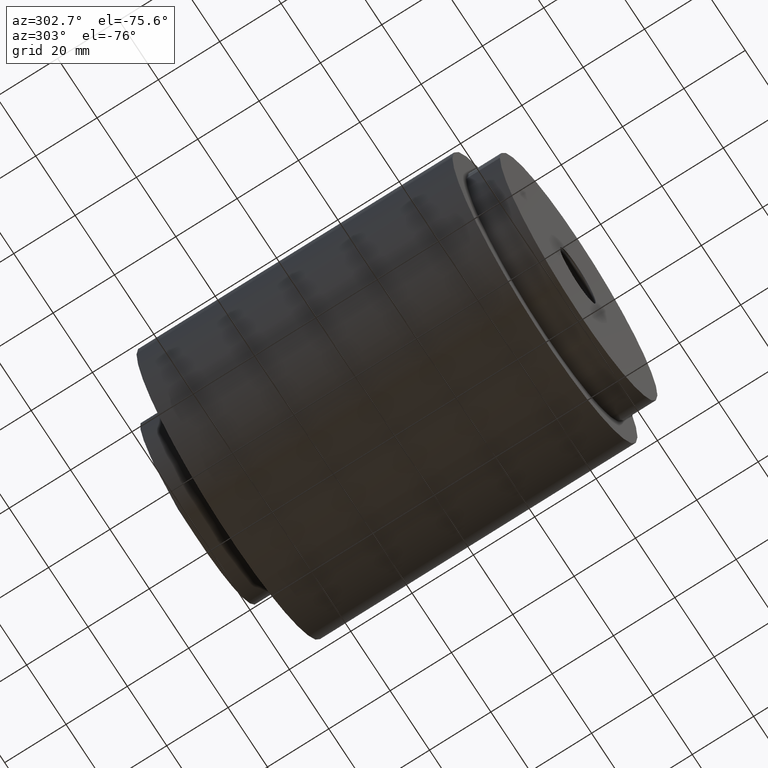
[diagram: clean part render]
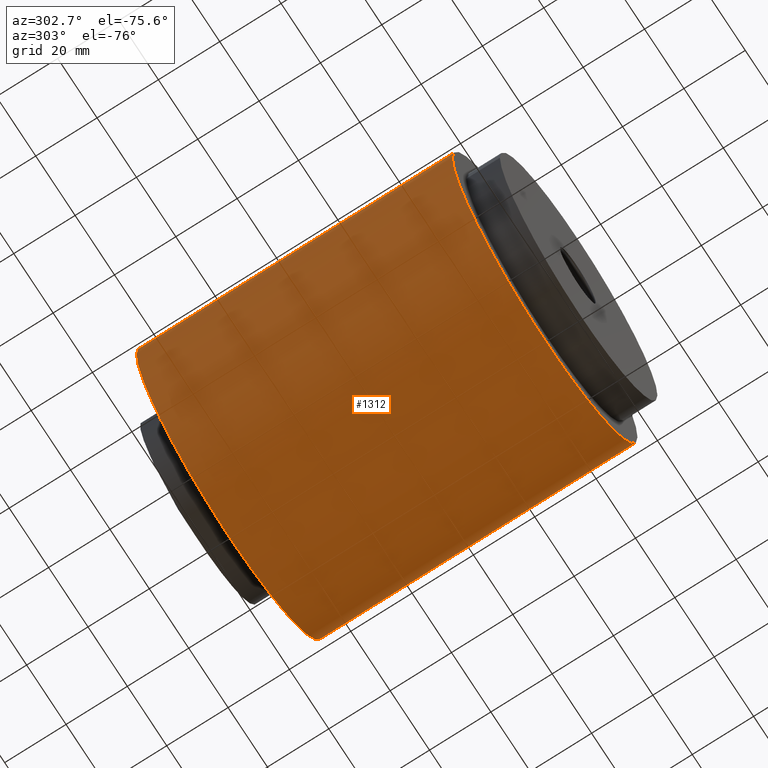
[diagram: same view with one face highlighted and labeled with its STEP entity id]
A machine part, auxiliary view. The second image highlights one B-rep face of the part: STEP entity #1312.
In plain terms, the highlighted cylindrical surface (bore or boss wall) has radius 47 mm, axis along (0, 1, 0).
Its self-contained STEP definition (entity closure, byte-faithful):
#93=B_SPLINE_CURVE_WITH_KNOTS('',3,(#5796,#5797,#5798,#5799,#5800,#5801,
#5802,#5803,#5804,#5805,#5806,#5807,#5808,#5809,#5810,#5811,#5812,#5813,
#5814,#5815,#5816,#5817,#5818,#5819,#5820,#5821,#5822,#5823,#5824,#5825,
#5826,#5827,#5828,#5829),.UNSPECIFIED.,.F.,.F.,(4,2,2,2,2,2,2,2,2,2,2,2,
2,2,2,2,4),(0.,0.39219322127822,0.784386442556441,1.17657966383466,1.56877288511288,
1.96038675340919,2.3520006217055,2.74361449000181,3.13522835829811,3.52684222659442,
3.91845609489073,4.31006996318704,4.70168383148335,5.09387705276157,5.48607027403979,
5.87826349531801,6.27045671659623),.UNSPECIFIED.);
#94=B_SPLINE_CURVE_WITH_KNOTS('',3,(#5830,#5831,#5832,#5833,#5834,#5835,
#5836,#5837,#5838,#5839,#5840,#5841,#5842,#5843,#5844,#5845,#5846,#5847,
#5848,#5849,#5850,#5851,#5852,#5853,#5854,#5855,#5856,#5857,#5858,#5859,
#5860,#5861,#5862,#5863),.UNSPECIFIED.,.F.,.F.,(4,2,2,2,2,2,2,2,2,2,2,2,
2,2,2,2,4),(6.27045671659623,6.66264993787445,7.05484315915267,7.44703638043089,
7.83922960170911,8.23084347000541,8.62245733830172,9.01407120659803,9.40568507489434,
9.79729894319065,10.188912811487,10.5805266797833,10.9721405480796,11.3643337693578,
11.756526990636,12.1487202119142,12.5409134331925),.UNSPECIFIED.);
#111=FACE_BOUND('',#303,.T.);
#215=FACE_OUTER_BOUND('',#302,.T.);
#302=EDGE_LOOP('',(#1172,#1173,#1174,#1175));
#303=EDGE_LOOP('',(#1176,#1177));
#391=LINE('',#5880,#475);
#475=VECTOR('',#1723,1.8503937007874);
#501=CIRCLE('',#1428,1.8503937007874);
#503=CIRCLE('',#1431,1.8503937007874);
#620=VERTEX_POINT('',#5793);
#621=VERTEX_POINT('',#5795);
#624=VERTEX_POINT('',#5873);
#626=VERTEX_POINT('',#5878);
#804=EDGE_CURVE('',#621,#620,#93,.T.);
#805=EDGE_CURVE('',#620,#621,#94,.T.);
#809=EDGE_CURVE('',#624,#624,#501,.T.);
#811=EDGE_CURVE('',#626,#626,#503,.T.);
#812=EDGE_CURVE('',#626,#624,#391,.T.);
#1172=ORIENTED_EDGE('',*,*,#811,.F.);
#1173=ORIENTED_EDGE('',*,*,#812,.T.);
#1174=ORIENTED_EDGE('',*,*,#809,.T.);
#1175=ORIENTED_EDGE('',*,*,#812,.F.);
#1176=ORIENTED_EDGE('',*,*,#804,.T.);
#1177=ORIENTED_EDGE('',*,*,#805,.T.);
#1235=CYLINDRICAL_SURFACE('',#1430,1.8503937007874);
#1312=ADVANCED_FACE('',(#215,#111),#1235,.T.);
#1428=AXIS2_PLACEMENT_3D('',#5874,#1715,#1716);
#1430=AXIS2_PLACEMENT_3D('',#5877,#1719,#1720);
#1431=AXIS2_PLACEMENT_3D('',#5879,#1721,#1722);
#1715=DIRECTION('center_axis',(0.,1.,0.));
#1716=DIRECTION('ref_axis',(-1.,0.,0.));
#1719=DIRECTION('center_axis',(0.,1.,0.));
#1720=DIRECTION('ref_axis',(-1.,0.,0.));
#1721=DIRECTION('center_axis',(0.,1.,0.));
#1722=DIRECTION('ref_axis',(-1.,0.,0.));
#1723=DIRECTION('',(0.,-1.,0.));
#5793=CARTESIAN_POINT('',(-0.807086614173228,2.46062992125984,1.66510301337067));
#5795=CARTESIAN_POINT('',(0.807086614173228,2.46062992125984,1.66510301337067));
#5796=CARTESIAN_POINT('Ctrl Pts',(0.807086614173228,2.46062992125984,1.66510301337067));
#5797=CARTESIAN_POINT('Ctrl Pts',(0.807086614173228,2.40916099458291,1.66510301337067));
#5798=CARTESIAN_POINT('Ctrl Pts',(0.802084784334732,2.35620058023945,1.66755777393839));
#5799=CARTESIAN_POINT('Ctrl Pts',(0.781309439414592,2.25134292016892,1.67739216946167));
#5800=CARTESIAN_POINT('Ctrl Pts',(0.765543292032329,2.19944296352252,1.68475845798413));
#5801=CARTESIAN_POINT('Ctrl Pts',(0.724169357321344,2.10027731190028,1.70295221650003));
#5802=CARTESIAN_POINT('Ctrl Pts',(0.698528755250808,2.05291959173878,1.71377227827277));
#5803=CARTESIAN_POINT('Ctrl Pts',(0.639532518726629,1.96548520250776,1.73665079995064));
#5804=CARTESIAN_POINT('Ctrl Pts',(0.606170119998836,1.92540720548512,1.74868673592672));
#5805=CARTESIAN_POINT('Ctrl Pts',(0.535275117993793,1.85451220348007,1.77167264393117));
#5806=CARTESIAN_POINT('Ctrl Pts',(0.495222555664146,1.82115675214401,1.78346410624794));
#5807=CARTESIAN_POINT('Ctrl Pts',(0.407775967090191,1.76213863680678,1.80546624408741));
#5808=CARTESIAN_POINT('Ctrl Pts',(0.360380460333249,1.73647137685438,1.81565870324636));
#5809=CARTESIAN_POINT('Ctrl Pts',(0.261137483685962,1.69506679489168,1.83256591112662));
#5810=CARTESIAN_POINT('Ctrl Pts',(0.209198998711224,1.67929652158112,1.83928301433812));
#5811=CARTESIAN_POINT('Ctrl Pts',(0.10432758524625,1.65853151240926,1.84819965990006));
#5812=CARTESIAN_POINT('Ctrl Pts',(0.0513928961018777,1.65354330708661,1.8503937007874));
#5813=CARTESIAN_POINT('Ctrl Pts',(-0.0513928961018777,1.65354330708661,
1.8503937007874));
#5814=CARTESIAN_POINT('Ctrl Pts',(-0.10432758524625,1.65853151240926,1.84819965990006));
#5815=CARTESIAN_POINT('Ctrl Pts',(-0.209198998711224,1.67929652158112,1.83928301433812));
#5816=CARTESIAN_POINT('Ctrl Pts',(-0.261137483685962,1.69506679489168,1.83256591112662));
#5817=CARTESIAN_POINT('Ctrl Pts',(-0.360380460333249,1.73647137685438,1.81565870324636));
#5818=CARTESIAN_POINT('Ctrl Pts',(-0.407775967090191,1.76213863680678,1.80546624408741));
#5819=CARTESIAN_POINT('Ctrl Pts',(-0.495222555664146,1.82115675214401,1.78346410624794));
#5820=CARTESIAN_POINT('Ctrl Pts',(-0.535275117993793,1.85451220348007,1.77167264393117));
#5821=CARTESIAN_POINT('Ctrl Pts',(-0.606170119998835,1.92540720548512,1.74868673592672));
#5822=CARTESIAN_POINT('Ctrl Pts',(-0.639532518726628,1.96548520250776,1.73665079995064));
#5823=CARTESIAN_POINT('Ctrl Pts',(-0.698528755250807,2.05291959173878,1.71377227827277));
#5824=CARTESIAN_POINT('Ctrl Pts',(-0.724169357321344,2.10027731190028,1.70295221650003));
#5825=CARTESIAN_POINT('Ctrl Pts',(-0.765543292032329,2.19944296352252,1.68475845798413));
#5826=CARTESIAN_POINT('Ctrl Pts',(-0.781309439414592,2.25134292016892,1.67739216946167));
#5827=CARTESIAN_POINT('Ctrl Pts',(-0.802084784334732,2.35620058023945,1.66755777393839));
#5828=CARTESIAN_POINT('Ctrl Pts',(-0.807086614173228,2.40916099458291,1.66510301337067));
#5829=CARTESIAN_POINT('Ctrl Pts',(-0.807086614173228,2.46062992125984,1.66510301337067));
#5830=CARTESIAN_POINT('Ctrl Pts',(-0.807086614173228,2.46062992125984,1.66510301337067));
#5831=CARTESIAN_POINT('Ctrl Pts',(-0.807086614173228,2.51209884793677,1.66510301337067));
#5832=CARTESIAN_POINT('Ctrl Pts',(-0.802084784334732,2.56505926228023,1.66755777393839));
#5833=CARTESIAN_POINT('Ctrl Pts',(-0.781309439414592,2.66991692235076,1.67739216946167));
#5834=CARTESIAN_POINT('Ctrl Pts',(-0.765543292032329,2.72181687899717,1.68475845798413));
#5835=CARTESIAN_POINT('Ctrl Pts',(-0.724169357321344,2.82098253061941,1.70295221650003));
#5836=CARTESIAN_POINT('Ctrl Pts',(-0.698528755250808,2.8683402507809,1.71377227827277));
#5837=CARTESIAN_POINT('Ctrl Pts',(-0.639532518726628,2.95577464001193,1.73665079995064));
#5838=CARTESIAN_POINT('Ctrl Pts',(-0.606170119998836,2.99585263703457,1.74868673592672));
#5839=CARTESIAN_POINT('Ctrl Pts',(-0.535275117993793,3.06674763903961,1.77167264393117));
#5840=CARTESIAN_POINT('Ctrl Pts',(-0.495222555664147,3.10010309037567,1.78346410624794));
#5841=CARTESIAN_POINT('Ctrl Pts',(-0.407775967090191,3.15912120571291,1.80546624408741));
#5842=CARTESIAN_POINT('Ctrl Pts',(-0.360380460333249,3.18478846566531,1.81565870324636));
#5843=CARTESIAN_POINT('Ctrl Pts',(-0.261137483685962,3.226193047628,1.83256591112662));
#5844=CARTESIAN_POINT('Ctrl Pts',(-0.209198998711224,3.24196332093857,1.83928301433812));
#5845=CARTESIAN_POINT('Ctrl Pts',(-0.104327585246249,3.26272833011042,1.84819965990006));
#5846=CARTESIAN_POINT('Ctrl Pts',(-0.0513928961018778,3.26771653543307,
1.8503937007874));
#5847=CARTESIAN_POINT('Ctrl Pts',(0.0513928961018775,3.26771653543307,1.8503937007874));
#5848=CARTESIAN_POINT('Ctrl Pts',(0.104327585246249,3.26272833011042,1.84819965990006));
#5849=CARTESIAN_POINT('Ctrl Pts',(0.209198998711224,3.24196332093857,1.83928301433812));
#5850=CARTESIAN_POINT('Ctrl Pts',(0.261137483685962,3.226193047628,1.83256591112662));
#5851=CARTESIAN_POINT('Ctrl Pts',(0.360380460333249,3.18478846566531,1.81565870324636));
#5852=CARTESIAN_POINT('Ctrl Pts',(0.407775967090191,3.15912120571291,1.80546624408741));
#5853=CARTESIAN_POINT('Ctrl Pts',(0.495222555664146,3.10010309037567,1.78346410624794));
#5854=CARTESIAN_POINT('Ctrl Pts',(0.535275117993793,3.06674763903961,1.77167264393117));
#5855=CARTESIAN_POINT('Ctrl Pts',(0.606170119998836,2.99585263703457,1.74868673592672));
#5856=CARTESIAN_POINT('Ctrl Pts',(0.639532518726628,2.95577464001193,1.73665079995064));
#5857=CARTESIAN_POINT('Ctrl Pts',(0.698528755250808,2.8683402507809,1.71377227827277));
#5858=CARTESIAN_POINT('Ctrl Pts',(0.724169357321344,2.82098253061941,1.70295221650003));
#5859=CARTESIAN_POINT('Ctrl Pts',(0.765543292032329,2.72181687899717,1.68475845798413));
#5860=CARTESIAN_POINT('Ctrl Pts',(0.781309439414592,2.66991692235076,1.67739216946167));
#5861=CARTESIAN_POINT('Ctrl Pts',(0.802084784334732,2.56505926228023,1.66755777393839));
#5862=CARTESIAN_POINT('Ctrl Pts',(0.807086614173228,2.51209884793677,1.66510301337067));
#5863=CARTESIAN_POINT('Ctrl Pts',(0.807086614173228,2.46062992125984,1.66510301337067));
#5873=CARTESIAN_POINT('',(1.8503937007874,0.433070866141732,-2.26607872283172E-16));
#5874=CARTESIAN_POINT('Origin',(0.,0.433070866141732,0.));
#5877=CARTESIAN_POINT('Origin',(0.,0.433070866141732,0.));
#5878=CARTESIAN_POINT('',(1.8503937007874,4.48818897637795,-2.26607872283172E-16));
#5879=CARTESIAN_POINT('Origin',(0.,4.48818897637795,0.));
#5880=CARTESIAN_POINT('',(1.8503937007874,0.433070866141732,-2.26607872283172E-16));